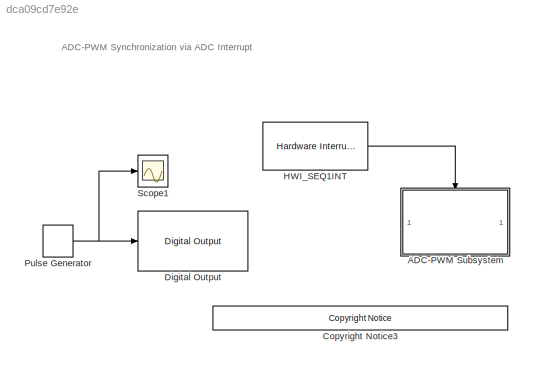
MODEL slx_dca09cd7e92e
KIND model
CONFIG AbsTol = auto
CONFIG EnableMultiTasking = on
CONFIG FixedStep = auto
CONFIG MaxStep = auto
CONFIG MinStep = auto
CONFIG RelTol = 1e-3
CONFIG SampleTimeConstraint = Unconstrained
CONFIG SolverName = FixedStepDiscrete
CONFIG StartTime = 0.0
CONFIG StopTime = Inf
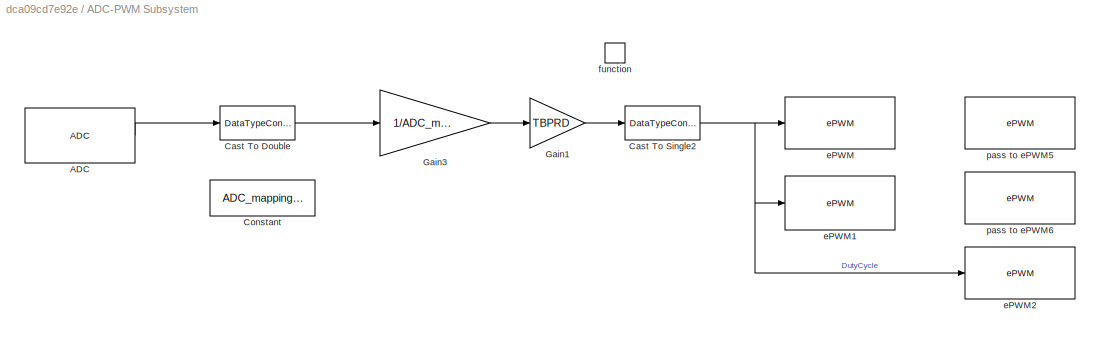
BLOCK [SubSystem] ADC-PWM Subsystem
  TreatAsAtomicUnit = on
BLOCK [Reference] ADC-PWM Subsystem/ADC  REF=c280xlib/ADC
  SourceBlock = c280xlib/ADC
  SourceType = ADC Type 1-2
  UserDataPersistent = on
BLOCK [DataTypeConversion] ADC-PWM Subsystem/Cast To Double
  OutDataTypeStr = double
  RndMeth = Floor
  SaturateOnIntegerOverflow = off
BLOCK [DataTypeConversion] ADC-PWM Subsystem/Cast To Single2
  OutDataTypeStr = uint16
  RndMeth = Floor
  SaturateOnIntegerOverflow = off
BLOCK [Constant] ADC-PWM Subsystem/Constant
  Commented = on
  Value = ADC_mapping/3
BLOCK [Gain] ADC-PWM Subsystem/Gain1
  Gain = TBPRD
BLOCK [Gain] ADC-PWM Subsystem/Gain3
  Gain = 1/ADC_mapping
BLOCK [Reference] ADC-PWM Subsystem/ePWM  REF=c280xlib/ePWM
  SourceBlock = c280xlib/ePWM
  SourceType = ePWM Type 0
  UserDataPersistent = on
BLOCK [Reference] ADC-PWM Subsystem/ePWM1  REF=c280xlib/ePWM
  SourceBlock = c280xlib/ePWM
  SourceType = ePWM Type 0
  UserDataPersistent = on
BLOCK [Reference] ADC-PWM Subsystem/ePWM2  REF=c280xlib/ePWM
  SourceBlock = c280xlib/ePWM
  SourceType = ePWM Type 0
  UserDataPersistent = on
BLOCK [TriggerPort] ADC-PWM Subsystem/function
  StatesWhenEnabling = held
  TriggerType = function-call
  VariantControl = Variant
BLOCK [Reference] ADC-PWM Subsystem/pass to ePWM5  REF=c280xlib/ePWM
  SourceBlock = c280xlib/ePWM
  SourceType = ePWM Type 0
  UserDataPersistent = on
BLOCK [Reference] ADC-PWM Subsystem/pass to ePWM6  REF=c280xlib/ePWM
  SourceBlock = c280xlib/ePWM
  SourceType = ePWM Type 0
  UserDataPersistent = on
BLOCK [Reference] <copyright redacted>
  SourceBlock = demo_controls/<copyright redacted>
  SourceType = <copyright redacted>
BLOCK [Reference] Digital Output  REF=c2833xlib/Digital Output
  Commented = on
  SourceBlock = c2833xlib/Digital Output
  SourceType = C2833x GPIO Digital Output
  UserDataPersistent = on
BLOCK [Reference] HWI_SEQ1INT  REF=svdschedulerlib/Hardware Interrupt v2
  LibrarySourceBlock = c2000lib/Scheduling/Hardware Interrupt
  SourceBlock = svdschedulerlib/Hardware Interrupt v2
  SourceType = HardwareInterrupt
  UserDataPersistent = on
BLOCK [DiscretePulseGenerator] Pulse Generator
  Commented = on
  PulseType = Time based
  PulseWidth = 50
BLOCK [Scope] Scope1
  Commented = on
  Floating = off
  NumInputPorts = 1
  ScopeSpecificationString = Simulink.scopes.TimeScopeBlockCfg('CurrentConfiguration', extmgr.ConfigurationSet(extmgr.Configuration('Core','General UI',true),extmgr.Configuration('Core','Source UI',true),extmgr.Configuration('Sources','WiredSimulink',true,'DataLoggingVariableName','ScopeData1'),extmgr.Configuration('Visuals','Time Domain',true,'SerializedDisplays',{struct('MinYLimReal','-1.00000','MaxYLimReal','1.00000','YLab...<+1448ch>
ANNOTATION (root): ADC-PWM Synchronization via ADC Interrupt
LINE ADC-PWM Subsystem/ADC:1 -> ADC-PWM Subsystem/Cast To Double:1
LINE ADC-PWM Subsystem/Cast To Double:1 -> ADC-PWM Subsystem/Gain3:1
NET ADC-PWM Subsystem/Cast To Single2:1 -> ADC-PWM Subsystem/ePWM1:1, ADC-PWM Subsystem/ePWM2:1, ADC-PWM Subsystem/ePWM:1
LINE ADC-PWM Subsystem/Gain1:1 -> ADC-PWM Subsystem/Cast To Single2:1
LINE ADC-PWM Subsystem/Gain3:1 -> ADC-PWM Subsystem/Gain1:1
LINE HWI_SEQ1INT:1 -> ADC-PWM Subsystem:trigger
NET Pulse Generator:1 -> Digital Output:1, Scope1:1
note: NET lines group one-source signal fan-out (src -> all destinations, sorted); 1:1 wires keep LINE
